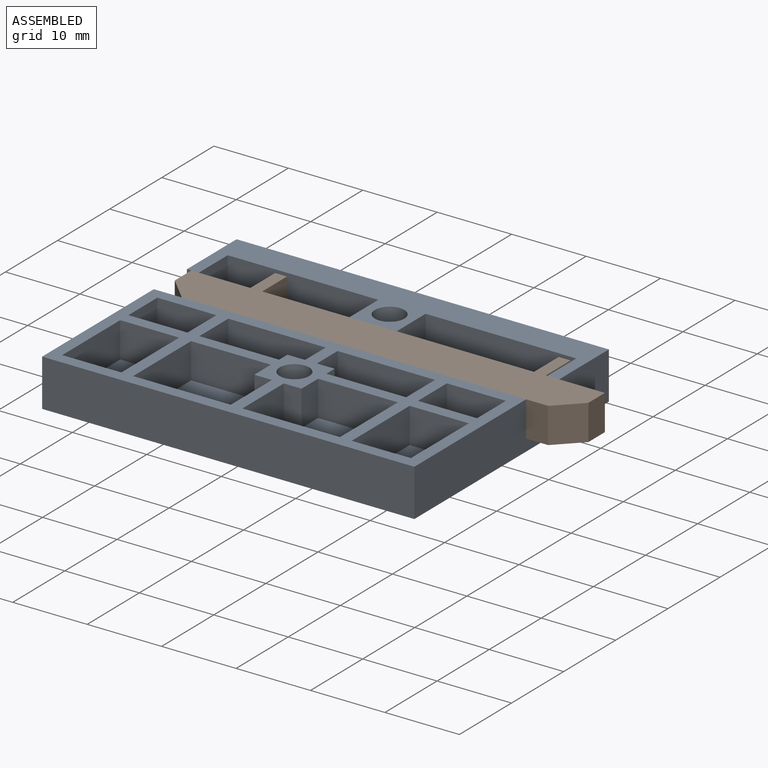
[diagram: assembled view]
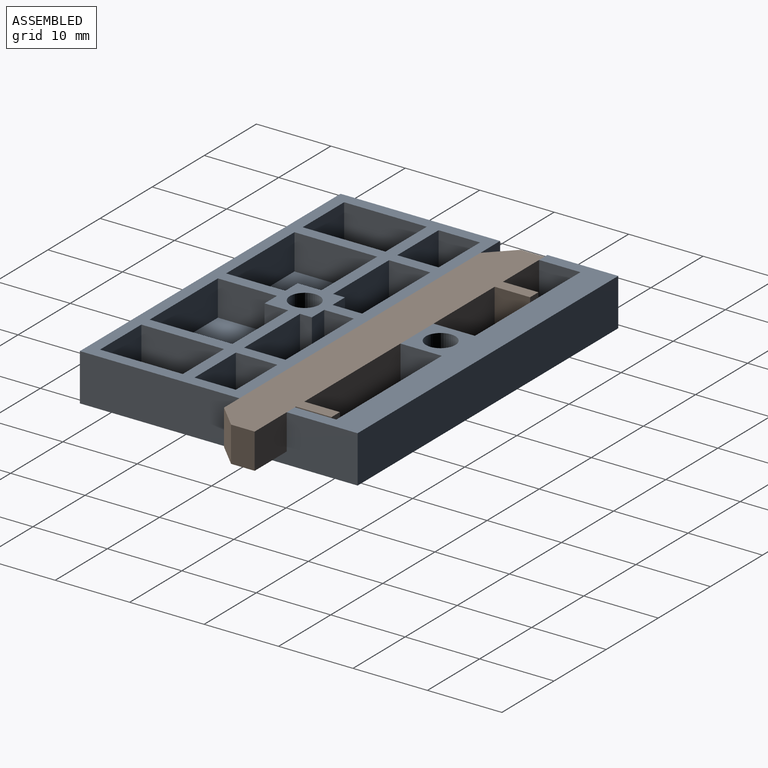
[diagram: assembled view, second angle]
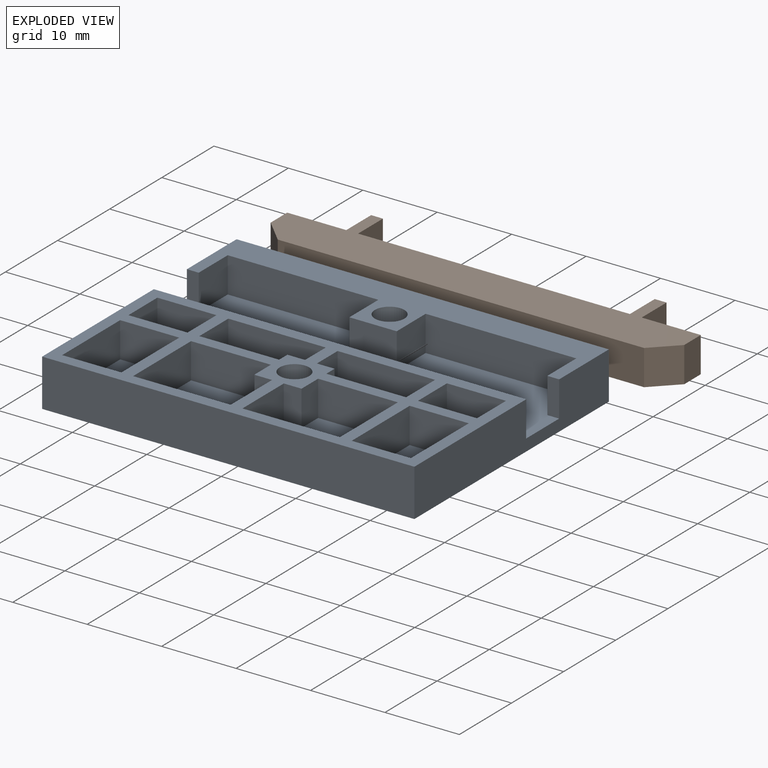
[diagram: exploded view]
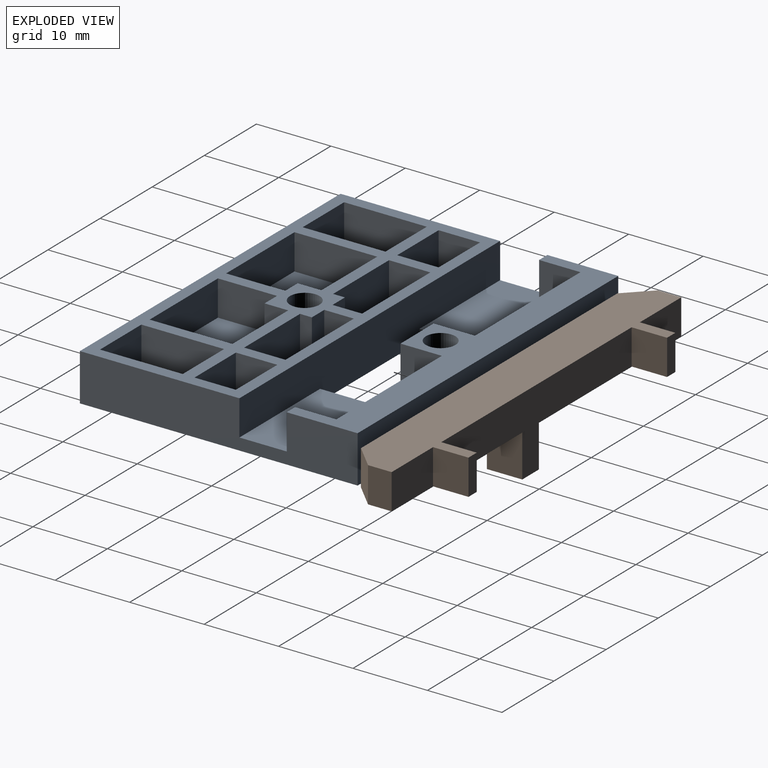
[diagram: exploded view, second angle]
ASSEMBLY  parts=2 mates=3
PART A: 73 faces, bbox 50x37.3x6.4 mm
  f0: plane 21.83x11.91mm, normal (0,0,1), area 210.7mm2, adj f3,f7,f34,f39,f40,f41,f42,f43
  f1: plane 6.35x1.59mm, normal (-1,0,0), area 10.1mm2, adj f11,f34,f39,f44
  f2: plane 37.31x6.35mm, normal (1,0,0), area 206.7mm2, adj f4,f5,f6,f10,f11,f34,f35,f44
  f3: plane 6.35x1.59mm, normal (1,0,0), area 10.1mm2, adj f0,f11,f34,f39
  f4: plane 50.01x21.43mm, normal (0,0,1), area 380.8mm2, adj f2,f7,f8,f10,f12,f13,f14,f15
  f5: plane 50.01x9.53mm, normal (0,0,1), area 239mm2, adj f2,f6,f7,f9,f35,f36,f37,f38
  f6: plane 50.01x6.35mm, normal (0,1,0), area 317.5mm2, adj f2,f5,f7,f11
  f7: plane 37.31x6.35mm, normal (-1,0,0), area 206.7mm2, adj f0,f4,f5,f6,f10,f11,f34,f43
  f8: cylinder r=1.98mm len=4.76mm, axis (0,0,-1), area 59.4mm2, adj f4,f72
  f9: cylinder r=1.98mm len=4.76mm, axis (0,0,-1), area 59.4mm2, adj f5,f71
  f10: plane 50.01x6.35mm, normal (0,-1,0), area 317.5mm2, adj f2,f4,f7,f11
  f11: plane 50.01x37.31mm, normal (0,0,-1), area 1696.1mm2, adj f1,f2,f3,f6,f7,f10,f34,f39
  f12: plane 5.56x4.76mm, normal (1,0,0), area 26.5mm2, adj f4,f13,f15,f16
  f13: plane 7.94x4.76mm, normal (0,1,0), area 37.8mm2, adj f4,f12,f14,f16
  f14: plane 5.56x4.76mm, normal (-1,0,0), area 26.5mm2, adj f4,f13,f15,f16
  f15: plane 7.94x4.76mm, normal (0,-1,0), area 37.8mm2, adj f4,f12,f14,f16
  f16: plane 7.94x5.56mm, normal (0,0,1), area 44.1mm2, adj f12,f13,f14,f15
  f17: plane 11.11x4.76mm, normal (-1,0,0), area 52.9mm2, adj f4,f18,f22,f23
  f18: plane 10.72x4.76mm, normal (0,-1,0), area 51mm2, adj f4,f17,f19,f23
  f19: plane 4.76x3.18mm, normal (1,0,0), area 15.1mm2, adj f4,f18,f20,f23
  f20: plane 4.76x2.38mm, normal (0,-1,0), area 11.3mm2, adj f4,f19,f21,f23
  f21: plane 7.94x4.76mm, normal (1,0,0), area 37.8mm2, adj f4,f20,f22,f23
  f22: plane 13.1x4.76mm, normal (0,1,0), area 62.4mm2, adj f4,f17,f21,f23
  f23: plane 13.1x11.11mm, normal (0,0,1), area 138mm2, adj f17,f18,f19,f20,f21,f22
  f24: plane 7.94x4.76mm, normal (0,1,0), area 37.8mm2, adj f4,f25,f27,f28
  f25: plane 5.56x4.76mm, normal (-1,0,0), area 26.5mm2, adj f4,f24,f26,f28
  f26: plane 7.94x4.76mm, normal (0,-1,0), area 37.8mm2, adj f4,f25,f27,f28
  f27: plane 5.56x4.76mm, normal (1,0,0), area 26.5mm2, adj f4,f24,f26,f28
  f28: plane 7.94x5.56mm, normal (0,0,1), area 44.1mm2, adj f24,f25,f26,f27
  f29: plane 7.94x4.76mm, normal (0,1,0), area 37.8mm2, adj f4,f30,f32,f33
  f30: plane 11.11x4.76mm, normal (-1,0,0), area 52.9mm2, adj f4,f29,f31,f33
  f31: plane 7.94x4.76mm, normal (0,-1,0), area 37.8mm2, adj f4,f30,f32,f33
  f32: plane 11.11x4.76mm, normal (1,0,0), area 52.9mm2, adj f4,f29,f31,f33
  f33: plane 11.11x7.94mm, normal (0,0,1), area 88.2mm2, adj f29,f30,f31,f32
  f34: plane 50.01x6.35mm, normal (0,1,0), area 268.4mm2, adj f0,f1,f2,f3,f4,f7,f11,f44
  f35: plane 4.76x1.59mm, normal (0,-1,0), area 7.6mm2, adj f2,f5,f36,f44
  f36: plane 5.56x4.76mm, normal (-1,0,0), area 26.5mm2, adj f5,f35,f37,f44
  f37: plane 20.24x4.76mm, normal (0,-1,0), area 96.4mm2, adj f5,f36,f38,f44
  f38: plane 5.56x4.76mm, normal (1,0,0), area 26.5mm2, adj f5,f37,f39,f44
  f39: plane 19.05x6.35mm, normal (0,-1,0), area 60.5mm2, adj f0,f1,f3,f5,f11,f38,f40,f44
  f40: plane 5.56x4.76mm, normal (-1,0,0), area 26.5mm2, adj f0,f5,f39,f41
  f41: plane 20.24x4.76mm, normal (0,-1,0), area 96.4mm2, adj f0,f5,f40,f42
  f42: plane 5.56x4.76mm, normal (1,0,0), area 26.5mm2, adj f0,f5,f41,f43
  f43: plane 4.76x1.59mm, normal (0,-1,0), area 7.6mm2, adj f0,f5,f7,f42
  f44: plane 21.83x11.91mm, normal (0,0,1), area 210.7mm2, adj f1,f2,f34,f35,f36,f37,f38,f39
  f45: plane 5.56x4.76mm, normal (1,0,0), area 26.5mm2, adj f4,f46,f50,f51
  f46: plane 10.72x4.76mm, normal (0,1,0), area 51mm2, adj f4,f45,f47,f51
  f47: plane 4.76x1.59mm, normal (-1,0,0), area 7.6mm2, adj f4,f46,f48,f51
  f48: plane 4.76x2.38mm, normal (0,1,0), area 11.3mm2, adj f4,f47,f49,f51
  f49: plane 4.76x3.97mm, normal (-1,0,0), area 18.9mm2, adj f4,f48,f50,f51
  f50: plane 13.1x4.76mm, normal (0,-1,0), area 62.4mm2, adj f4,f45,f49,f51
  f51: plane 13.1x5.56mm, normal (0,0,1), area 69mm2, adj f45,f46,f47,f48,f49,f50
  f52: plane 11.11x4.76mm, normal (1,0,0), area 52.9mm2, adj f4,f53,f55,f56
  f53: plane 7.94x4.76mm, normal (0,1,0), area 37.8mm2, adj f4,f52,f54,f56
  f54: plane 11.11x4.76mm, normal (-1,0,0), area 52.9mm2, adj f4,f53,f55,f56
  f55: plane 7.94x4.76mm, normal (0,-1,0), area 37.8mm2, adj f4,f52,f54,f56
  f56: plane 11.11x7.94mm, normal (0,0,1), area 88.2mm2, adj f52,f53,f54,f55
  f57: plane 7.94x4.76mm, normal (-1,0,0), area 37.8mm2, adj f4,f58,f62,f63
  f58: plane 4.76x2.38mm, normal (0,-1,0), area 11.3mm2, adj f4,f57,f59,f63
  f59: plane 4.76x3.18mm, normal (-1,0,0), area 15.1mm2, adj f4,f58,f60,f63
  f60: plane 10.72x4.76mm, normal (0,-1,0), area 51mm2, adj f4,f59,f61,f63
  f61: plane 11.11x4.76mm, normal (1,0,0), area 52.9mm2, adj f4,f60,f62,f63
  f62: plane 13.1x4.76mm, normal (0,1,0), area 62.4mm2, adj f4,f57,f61,f63
  f63: plane 13.1x11.11mm, normal (0,0,1), area 138mm2, adj f57,f58,f59,f60,f61,f62
  f64: plane 5.56x4.76mm, normal (-1,0,0), area 26.5mm2, adj f4,f65,f69,f70
  f65: plane 13.1x4.76mm, normal (0,-1,0), area 62.4mm2, adj f4,f64,f66,f70
  f66: plane 4.76x3.97mm, normal (1,0,0), area 18.9mm2, adj f4,f65,f67,f70
  f67: plane 4.76x2.38mm, normal (0,1,0), area 11.3mm2, adj f4,f66,f68,f70
  f68: plane 4.76x1.59mm, normal (1,0,0), area 7.6mm2, adj f4,f67,f69,f70
  f69: plane 10.72x4.76mm, normal (0,1,0), area 51mm2, adj f4,f64,f68,f70
  f70: plane 13.1x5.56mm, normal (0,0,1), area 69mm2, adj f64,f65,f66,f67,f68,f69
  f71: cone r=1.98mm half-angle=26.6deg, axis (0,0,-1), area 26.6mm2, adj f9,f11
  f72: cone r=2.78mm half-angle=26.6deg, axis (0,0,-1), area 26.6mm2, adj f8,f11
PART B: 21 faces, bbox 55.6x11.1x11.1 mm
  f0: plane 55.56x11.11mm, normal (0,0,1), area 342.7mm2, adj f1,f2,f3,f4,f5,f6,f7,f8
  f1: plane 36.51x4.76mm, normal (0,-1,0), area 173.9mm2, adj f0,f2,f14,f15
  f2: plane 4.76x4.76mm, normal (-1,0,0), area 22.7mm2, adj f0,f1,f3,f15
  f3: plane 4.76x1.59mm, normal (0,-1,0), area 7.6mm2, adj f0,f2,f4,f15
  f4: plane 4.76x4.76mm, normal (1,0,0), area 22.7mm2, adj f0,f3,f5,f15
  f5: plane 7.94x4.76mm, normal (0,-1,0), area 37.8mm2, adj f0,f4,f6,f15
  f6: plane 4.76x3.18mm, normal (1,0,0), area 15.1mm2, adj f0,f5,f7,f15
  f7: plane 4.76x3.18mm, normal (0.71,0.71,0), area 21.4mm2, adj f0,f6,f8,f15
  f8: plane 49.21x4.76mm, normal (0,1,0), area 234.4mm2, adj f0,f7,f9,f15
  f9: plane 4.76x3.18mm, normal (-0.71,0.71,0), area 21.4mm2, adj f0,f8,f10,f15
  f10: plane 4.76x3.18mm, normal (-1,0,0), area 15.1mm2, adj f0,f9,f11,f15
  f11: plane 7.94x4.76mm, normal (0,-1,0), area 37.8mm2, adj f0,f10,f12,f15
  f12: plane 4.76x4.76mm, normal (-1,0,0), area 22.7mm2, adj f0,f11,f13,f15
  f13: plane 4.76x1.59mm, normal (0,-1,0), area 7.6mm2, adj f0,f12,f14,f15
  f14: plane 4.76x4.76mm, normal (1,0,0), area 22.7mm2, adj f0,f1,f13,f15
  f15: plane 55.56x11.11mm, normal (0,0,-1), area 357.9mm2, adj f1,f2,f3,f4,f5,f6,f7,f8
  f16: plane 6.35x3.18mm, normal (0,-1,0), area 20.2mm2, adj f0,f17,f19,f20
  f17: plane 6.35x4.76mm, normal (1,0,0), area 30.2mm2, adj f0,f16,f18,f20
  f18: plane 6.35x3.18mm, normal (0,1,0), area 20.2mm2, adj f0,f17,f19,f20
  f19: plane 6.35x4.76mm, normal (-1,0,0), area 30.2mm2, adj f0,f16,f18,f20
  f20: plane 4.76x3.18mm, normal (0,0,1), area 15.1mm2, adj f16,f17,f18,f19
PLACE A t=(-4.11,-8.41,-3.16)mm fixed
PLACE B rot(axis=(1,0,0),180deg) t=(-0.75,-2.46,3.19)mm
MATE planar B.f8 <-> A.f34  axis (0,-1,0) through (-0.75,-5.63,0.81)mm
MATE planar B.f15 <-> A.f4  axis (0,0,1) through (-0.75,-2.16,3.19)mm
MATE parallel B.f12 <-> A.f42  axis (-1,0,0) through (-20.59,3.1,0.81)mm
